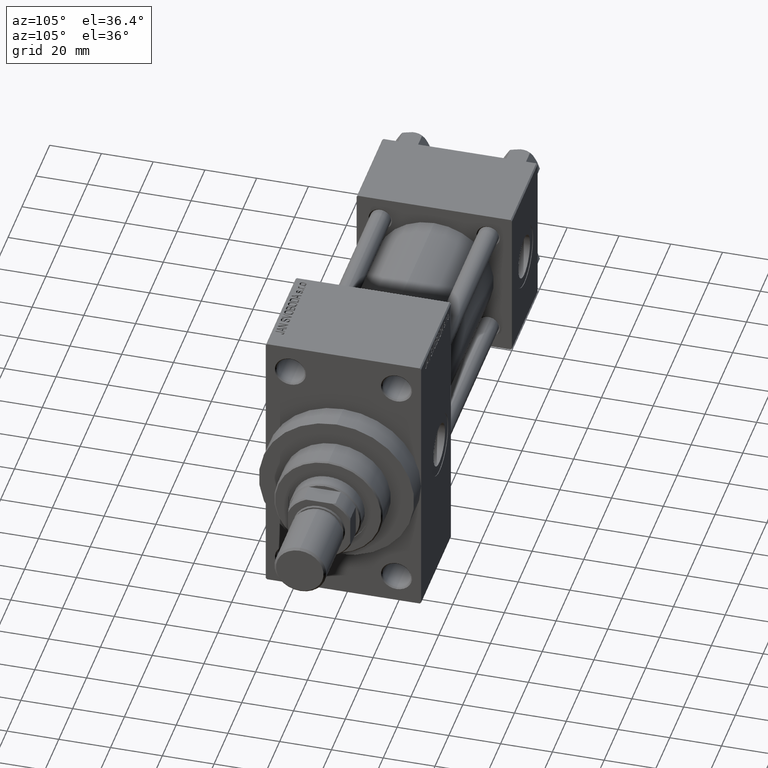
[diagram: clean part render]
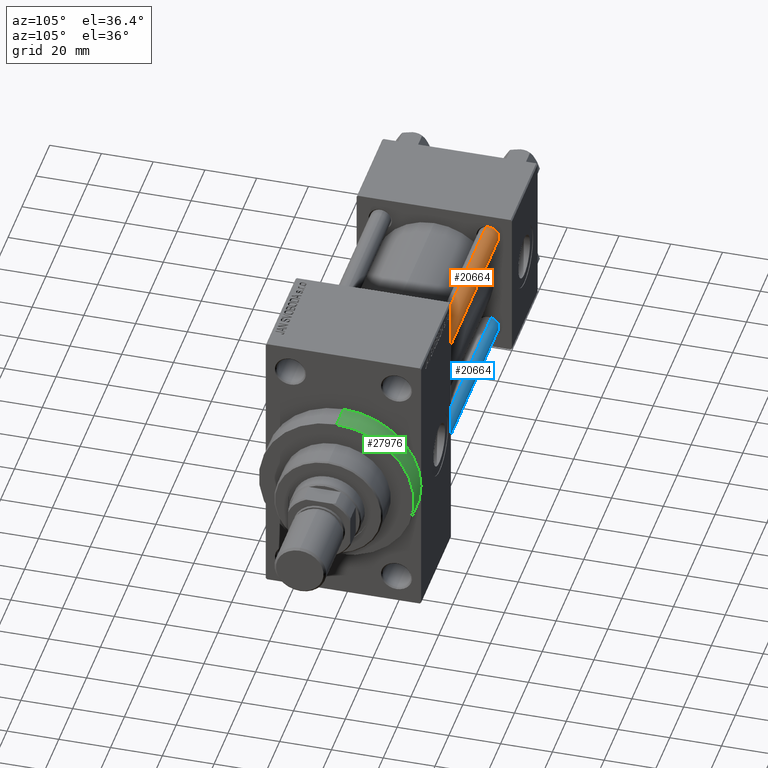
[diagram: same view with three faces highlighted in distinct colors, each labeled with its STEP entity id]
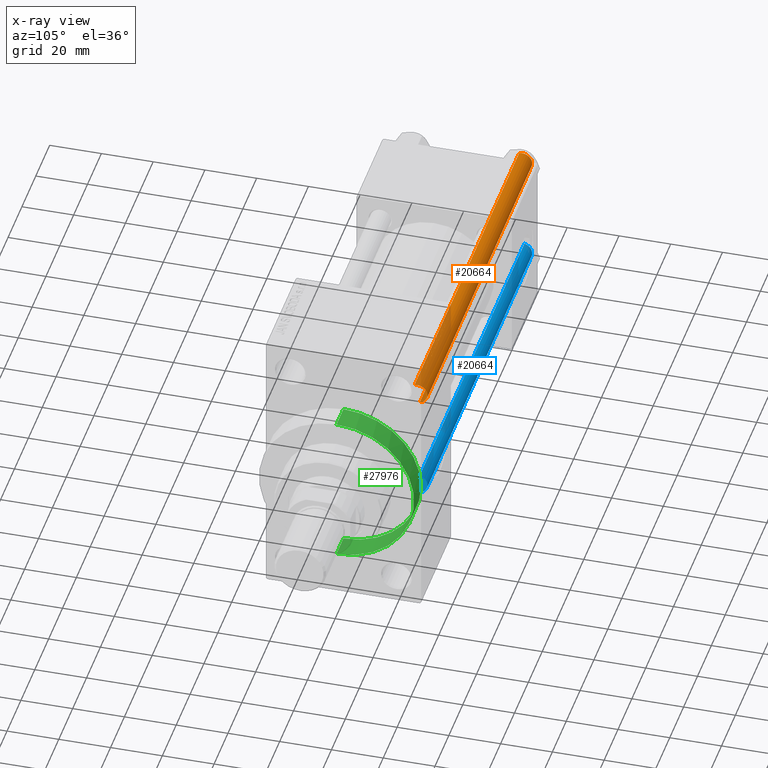
[diagram: x-ray of the same camera — body ghosted, the three highlighted faces saturated]
A machine part, auxiliary view with three faces highlighted in distinct colors.
The next image is the same camera in x-ray (body ghosted, the three faces saturated) — at least one of them is partly hidden behind the body in this view.
Their STEP definitions:

[orange] entity #20664 — the highlighted cylindrical surface (edge-blend (fillet) strip) has radius 4 mm, axis along (-1, -0, 0).
#182 = VERTEX_POINT ( 'NONE', #27810 ) ;
#509 = VECTOR ( 'NONE', #9675, 1000.000000000000000 ) ;
#1000 = AXIS2_PLACEMENT_3D ( 'NONE', #16516, #31205, #42538 ) ;
#5653 = AXIS2_PLACEMENT_3D ( 'NONE', #13980, #32071, #25090 ) ;
#7837 = DIRECTION ( 'NONE',  ( -0.000000000000000000, -0.000000000000000000, 1.000000000000000000 ) ) ;
#9384 = EDGE_CURVE ( 'NONE', #182, #33403, #24197, .T. ) ;
#9675 = DIRECTION ( 'NONE',  ( -0.000000000000000000, -0.000000000000000000, -1.000000000000000000 ) ) ;
#10656 = EDGE_LOOP ( 'NONE', ( #34400, #12902, #15332, #36732 ) ) ;
#12902 = ORIENTED_EDGE ( 'NONE', *, *, #37080, .T. ) ;
#13980 = CARTESIAN_POINT ( 'NONE',  ( 0.000000000000000000, 0.000000000000000000, 152.0000000000000000 ) ) ;
#14052 = DIRECTION ( 'NONE',  ( -0.000000000000000000, -0.000000000000000000, -1.000000000000000000 ) ) ;
#15172 = CARTESIAN_POINT ( 'NONE',  ( -4.000000000000000000, 0.000000000000000000, 0.5000000000000281997 ) ) ;
#15332 = ORIENTED_EDGE ( 'NONE', *, *, #46677, .T. ) ;
#16516 = CARTESIAN_POINT ( 'NONE',  ( 0.000000000000000000, 0.000000000000000000, 151.5000000000000284 ) ) ;
#17677 = CARTESIAN_POINT ( 'NONE',  ( 4.000000000000000000, 4.898587196589412829E-16, 152.0000000000000000 ) ) ;
#20505 = CARTESIAN_POINT ( 'NONE',  ( -4.000000000000000000, 0.000000000000000000, 152.0000000000000000 ) ) ;
#20664 = ADVANCED_FACE ( 'NONE', ( #20981 ), #40033, .T. ) ;
#20981 = FACE_OUTER_BOUND ( 'NONE', #10656, .T. ) ;
#22535 = DIRECTION ( 'NONE',  ( 1.000000000000000000, 0.000000000000000000, 0.000000000000000000 ) ) ;
#23869 = CARTESIAN_POINT ( 'NONE',  ( 4.000000000000000000, 4.898587196589412829E-16, 0.5000000000000281997 ) ) ;
#24197 = CIRCLE ( 'NONE', #1000, 4.000000000000000000 ) ;
#25090 = DIRECTION ( 'NONE',  ( -1.000000000000000000, 0.000000000000000000, 0.000000000000000000 ) ) ;
#25235 = VECTOR ( 'NONE', #14052, 1000.000000000000000 ) ;
#25523 = AXIS2_PLACEMENT_3D ( 'NONE', #29771, #7837, #22535 ) ;
#27810 = CARTESIAN_POINT ( 'NONE',  ( -4.000000000000000000, 0.000000000000000000, 151.5000000000000284 ) ) ;
#29771 = CARTESIAN_POINT ( 'NONE',  ( 0.000000000000000000, 0.000000000000000000, 0.5000000000000281997 ) ) ;
#31205 = DIRECTION ( 'NONE',  ( 0.000000000000000000, 0.000000000000000000, -1.000000000000000000 ) ) ;
#31581 = LINE ( 'NONE', #20505, #509 ) ;
#32071 = DIRECTION ( 'NONE',  ( -0.000000000000000000, -0.000000000000000000, -1.000000000000000000 ) ) ;
#33236 = CIRCLE ( 'NONE', #25523, 4.000000000000000000 ) ;
#33245 = VERTEX_POINT ( 'NONE', #23869 ) ;
#33403 = VERTEX_POINT ( 'NONE', #44359 ) ;
#34400 = ORIENTED_EDGE ( 'NONE', *, *, #9384, .T. ) ;
#34994 = EDGE_CURVE ( 'NONE', #182, #40862, #31581, .T. ) ;
#36732 = ORIENTED_EDGE ( 'NONE', *, *, #34994, .F. ) ;
#36891 = LINE ( 'NONE', #17677, #25235 ) ;
#37080 = EDGE_CURVE ( 'NONE', #33403, #33245, #36891, .T. ) ;
#40033 = CYLINDRICAL_SURFACE ( 'NONE', #5653, 4.000000000000000000 ) ;
#40862 = VERTEX_POINT ( 'NONE', #15172 ) ;
#42538 = DIRECTION ( 'NONE',  ( 1.000000000000000000, 0.000000000000000000, 0.000000000000000000 ) ) ;
#44359 = CARTESIAN_POINT ( 'NONE',  ( 4.000000000000000000, 4.898587196589412829E-16, 151.5000000000000284 ) ) ;
#46677 = EDGE_CURVE ( 'NONE', #33245, #40862, #33236, .T. ) ;

[blue] entity #20664 — the highlighted cylindrical surface (edge-blend (fillet) strip) has radius 4 mm, axis along (1, -0, 0).
#182 = VERTEX_POINT ( 'NONE', #27810 ) ;
#509 = VECTOR ( 'NONE', #9675, 1000.000000000000000 ) ;
#1000 = AXIS2_PLACEMENT_3D ( 'NONE', #16516, #31205, #42538 ) ;
#5653 = AXIS2_PLACEMENT_3D ( 'NONE', #13980, #32071, #25090 ) ;
#7837 = DIRECTION ( 'NONE',  ( -0.000000000000000000, -0.000000000000000000, 1.000000000000000000 ) ) ;
#9384 = EDGE_CURVE ( 'NONE', #182, #33403, #24197, .T. ) ;
#9675 = DIRECTION ( 'NONE',  ( -0.000000000000000000, -0.000000000000000000, -1.000000000000000000 ) ) ;
#10656 = EDGE_LOOP ( 'NONE', ( #34400, #12902, #15332, #36732 ) ) ;
#12902 = ORIENTED_EDGE ( 'NONE', *, *, #37080, .T. ) ;
#13980 = CARTESIAN_POINT ( 'NONE',  ( 0.000000000000000000, 0.000000000000000000, 152.0000000000000000 ) ) ;
#14052 = DIRECTION ( 'NONE',  ( -0.000000000000000000, -0.000000000000000000, -1.000000000000000000 ) ) ;
#15172 = CARTESIAN_POINT ( 'NONE',  ( -4.000000000000000000, 0.000000000000000000, 0.5000000000000281997 ) ) ;
#15332 = ORIENTED_EDGE ( 'NONE', *, *, #46677, .T. ) ;
#16516 = CARTESIAN_POINT ( 'NONE',  ( 0.000000000000000000, 0.000000000000000000, 151.5000000000000284 ) ) ;
#17677 = CARTESIAN_POINT ( 'NONE',  ( 4.000000000000000000, 4.898587196589412829E-16, 152.0000000000000000 ) ) ;
#20505 = CARTESIAN_POINT ( 'NONE',  ( -4.000000000000000000, 0.000000000000000000, 152.0000000000000000 ) ) ;
#20664 = ADVANCED_FACE ( 'NONE', ( #20981 ), #40033, .T. ) ;
#20981 = FACE_OUTER_BOUND ( 'NONE', #10656, .T. ) ;
#22535 = DIRECTION ( 'NONE',  ( 1.000000000000000000, 0.000000000000000000, 0.000000000000000000 ) ) ;
#23869 = CARTESIAN_POINT ( 'NONE',  ( 4.000000000000000000, 4.898587196589412829E-16, 0.5000000000000281997 ) ) ;
#24197 = CIRCLE ( 'NONE', #1000, 4.000000000000000000 ) ;
#25090 = DIRECTION ( 'NONE',  ( -1.000000000000000000, 0.000000000000000000, 0.000000000000000000 ) ) ;
#25235 = VECTOR ( 'NONE', #14052, 1000.000000000000000 ) ;
#25523 = AXIS2_PLACEMENT_3D ( 'NONE', #29771, #7837, #22535 ) ;
#27810 = CARTESIAN_POINT ( 'NONE',  ( -4.000000000000000000, 0.000000000000000000, 151.5000000000000284 ) ) ;
#29771 = CARTESIAN_POINT ( 'NONE',  ( 0.000000000000000000, 0.000000000000000000, 0.5000000000000281997 ) ) ;
#31205 = DIRECTION ( 'NONE',  ( 0.000000000000000000, 0.000000000000000000, -1.000000000000000000 ) ) ;
#31581 = LINE ( 'NONE', #20505, #509 ) ;
#32071 = DIRECTION ( 'NONE',  ( -0.000000000000000000, -0.000000000000000000, -1.000000000000000000 ) ) ;
#33236 = CIRCLE ( 'NONE', #25523, 4.000000000000000000 ) ;
#33245 = VERTEX_POINT ( 'NONE', #23869 ) ;
#33403 = VERTEX_POINT ( 'NONE', #44359 ) ;
#34400 = ORIENTED_EDGE ( 'NONE', *, *, #9384, .T. ) ;
#34994 = EDGE_CURVE ( 'NONE', #182, #40862, #31581, .T. ) ;
#36732 = ORIENTED_EDGE ( 'NONE', *, *, #34994, .F. ) ;
#36891 = LINE ( 'NONE', #17677, #25235 ) ;
#37080 = EDGE_CURVE ( 'NONE', #33403, #33245, #36891, .T. ) ;
#40033 = CYLINDRICAL_SURFACE ( 'NONE', #5653, 4.000000000000000000 ) ;
#40862 = VERTEX_POINT ( 'NONE', #15172 ) ;
#42538 = DIRECTION ( 'NONE',  ( 1.000000000000000000, 0.000000000000000000, 0.000000000000000000 ) ) ;
#44359 = CARTESIAN_POINT ( 'NONE',  ( 4.000000000000000000, 4.898587196589412829E-16, 151.5000000000000284 ) ) ;
#46677 = EDGE_CURVE ( 'NONE', #33245, #40862, #33236, .T. ) ;

[green] entity #27976 — the highlighted cylindrical surface (partial cylindrical patch) has radius 30 mm, axis along (-1, -0, -0).
#2597 = DIRECTION ( 'NONE',  ( -1.000000000000000000, -0.000000000000000000, -0.000000000000000000 ) ) ;
#2836 = CARTESIAN_POINT ( 'NONE',  ( 178.0000000000000000, 0.000000000000000000, 30.00000000000000000 ) ) ;
#3420 = VECTOR ( 'NONE', #19579, 1000.000000000000000 ) ;
#3477 = VERTEX_POINT ( 'NONE', #9167 ) ;
#5911 = CARTESIAN_POINT ( 'NONE',  ( 178.0000000000000000, 0.000000000000000000, 0.000000000000000000 ) ) ;
#6104 = CARTESIAN_POINT ( 'NONE',  ( 178.0000000000000000, 3.673940397442059178E-15, -30.00000000000000000 ) ) ;
#6193 = VERTEX_POINT ( 'NONE', #14503 ) ;
#6593 = CIRCLE ( 'NONE', #19681, 30.00000000000000000 ) ;
#7020 = EDGE_LOOP ( 'NONE', ( #8770, #35770, #18570, #27137, #32641 ) ) ;
#7880 = CIRCLE ( 'NONE', #24834, 30.00000000000000000 ) ;
#8770 = ORIENTED_EDGE ( 'NONE', *, *, #12692, .F. ) ;
#9167 = CARTESIAN_POINT ( 'NONE',  ( 178.0000000000000000, 0.000000000000000000, 30.00000000000000000 ) ) ;
#10090 = DIRECTION ( 'NONE',  ( -1.000000000000000000, -0.000000000000000000, -0.000000000000000000 ) ) ;
#10216 = CARTESIAN_POINT ( 'NONE',  ( 167.9999999999999716, 30.00000000000000000, 0.000000000000000000 ) ) ;
#12692 = EDGE_CURVE ( 'NONE', #28518, #3477, #6593, .T. ) ;
#13307 = CARTESIAN_POINT ( 'NONE',  ( 167.9999999999999716, 0.000000000000000000, 30.00000000000000000 ) ) ;
#13990 = VECTOR ( 'NONE', #2597, 1000.000000000000000 ) ;
#14503 = CARTESIAN_POINT ( 'NONE',  ( 167.9999999999999716, 3.673940397442059178E-15, -30.00000000000000000 ) ) ;
#15960 = CARTESIAN_POINT ( 'NONE',  ( 178.0000000000000000, 3.673940397442059178E-15, -30.00000000000000000 ) ) ;
#16542 = CIRCLE ( 'NONE', #34280, 30.00000000000000000 ) ;
#16612 = CARTESIAN_POINT ( 'NONE',  ( 178.0000000000000000, 0.000000000000000000, 0.000000000000000000 ) ) ;
#17074 = CYLINDRICAL_SURFACE ( 'NONE', #28888, 30.00000000000000000 ) ;
#17986 = EDGE_CURVE ( 'NONE', #31017, #44282, #7880, .T. ) ;
#18570 = ORIENTED_EDGE ( 'NONE', *, *, #27712, .T. ) ;
#19579 = DIRECTION ( 'NONE',  ( -1.000000000000000000, -0.000000000000000000, -0.000000000000000000 ) ) ;
#19681 = AXIS2_PLACEMENT_3D ( 'NONE', #5911, #46665, #27608 ) ;
#24375 = DIRECTION ( 'NONE',  ( 0.000000000000000000, 0.000000000000000000, -1.000000000000000000 ) ) ;
#24834 = AXIS2_PLACEMENT_3D ( 'NONE', #41217, #26744, #34221 ) ;
#25095 = DIRECTION ( 'NONE',  ( 1.000000000000000000, 0.000000000000000000, 0.000000000000000000 ) ) ;
#26744 = DIRECTION ( 'NONE',  ( 1.000000000000000000, 0.000000000000000000, 0.000000000000000000 ) ) ;
#26825 = EDGE_CURVE ( 'NONE', #28518, #6193, #30185, .T. ) ;
#27137 = ORIENTED_EDGE ( 'NONE', *, *, #17986, .T. ) ;
#27608 = DIRECTION ( 'NONE',  ( 0.000000000000000000, 0.000000000000000000, -1.000000000000000000 ) ) ;
#27712 = EDGE_CURVE ( 'NONE', #6193, #31017, #16542, .T. ) ;
#27976 = ADVANCED_FACE ( 'NONE', ( #31534 ), #17074, .T. ) ;
#28163 = DIRECTION ( 'NONE',  ( 0.000000000000000000, 0.000000000000000000, 1.000000000000000000 ) ) ;
#28518 = VERTEX_POINT ( 'NONE', #6104 ) ;
#28888 = AXIS2_PLACEMENT_3D ( 'NONE', #16612, #10090, #28163 ) ;
#30185 = LINE ( 'NONE', #15960, #3420 ) ;
#31017 = VERTEX_POINT ( 'NONE', #10216 ) ;
#31534 = FACE_OUTER_BOUND ( 'NONE', #7020, .T. ) ;
#32641 = ORIENTED_EDGE ( 'NONE', *, *, #42805, .F. ) ;
#34221 = DIRECTION ( 'NONE',  ( 0.000000000000000000, 0.000000000000000000, -1.000000000000000000 ) ) ;
#34280 = AXIS2_PLACEMENT_3D ( 'NONE', #43425, #25095, #24375 ) ;
#35770 = ORIENTED_EDGE ( 'NONE', *, *, #26825, .T. ) ;
#41217 = CARTESIAN_POINT ( 'NONE',  ( 167.9999999999999716, 0.000000000000000000, 0.000000000000000000 ) ) ;
#42640 = LINE ( 'NONE', #2836, #13990 ) ;
#42805 = EDGE_CURVE ( 'NONE', #3477, #44282, #42640, .T. ) ;
#43425 = CARTESIAN_POINT ( 'NONE',  ( 167.9999999999999716, 0.000000000000000000, 0.000000000000000000 ) ) ;
#44282 = VERTEX_POINT ( 'NONE', #13307 ) ;
#46665 = DIRECTION ( 'NONE',  ( 1.000000000000000000, 0.000000000000000000, 0.000000000000000000 ) ) ;